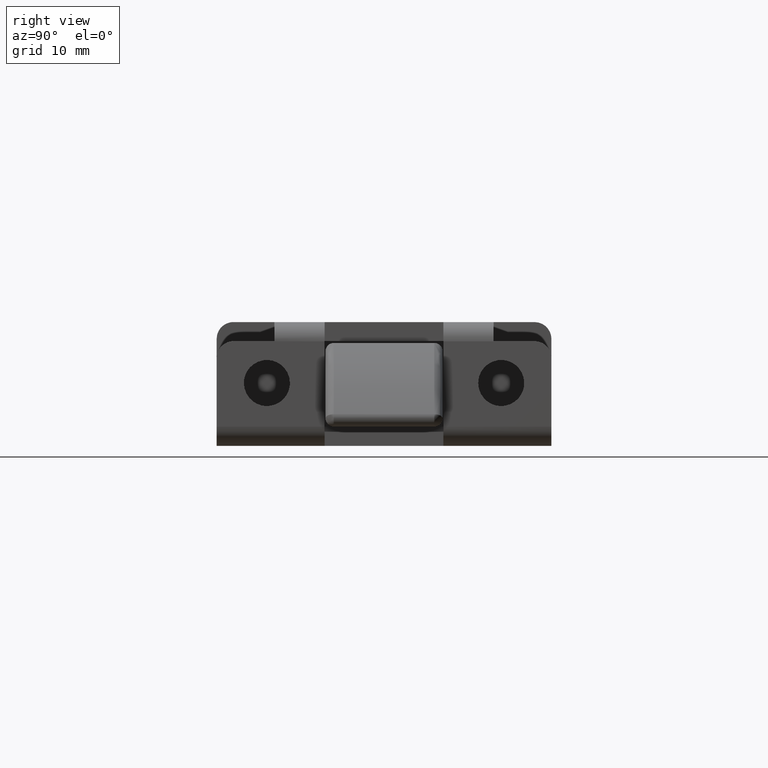
[diagram: clean part render]
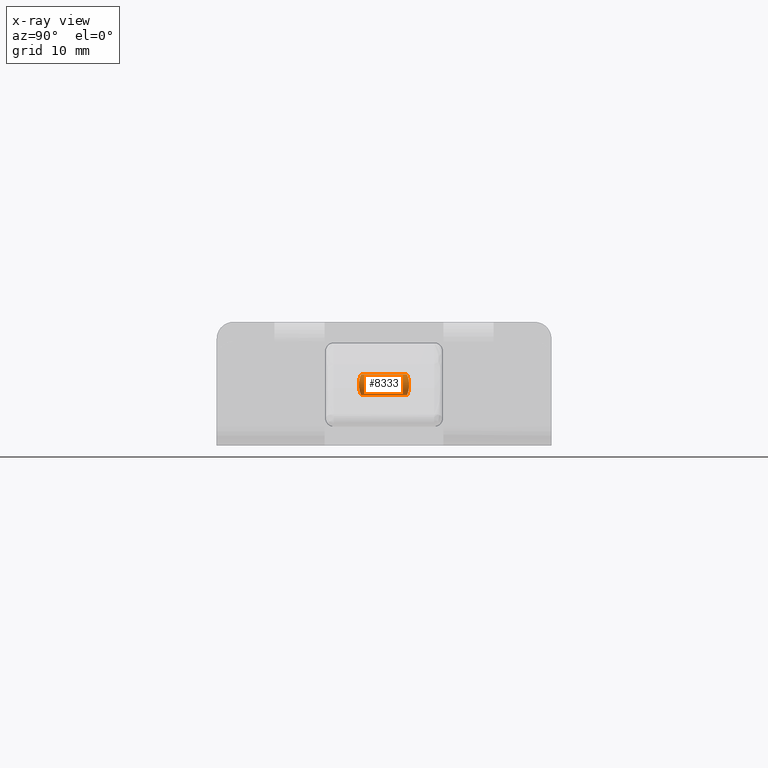
[diagram: x-ray — body ghosted, one internal face saturated and labeled with its STEP entity id]
A machine part, right view, then the same camera in x-ray: the body is ghosted and one INTERNAL B-rep face — a face not visible from any outside direction — is saturated and labeled: STEP entity #8333.
In plain terms, the highlighted face is a freeform B-spline surface patch.
Its self-contained STEP definition (entity closure, byte-faithful):
#8042=CARTESIAN_POINT('',(29.344838550902150,1.240332904094824,-2.731592356544332));
#8043=VERTEX_POINT('',#8042);
#8073=CARTESIAN_POINT('',(29.344840126864771,1.240331733160716,2.731589449662411));
#8074=VERTEX_POINT('',#8073);
#8075=CARTESIAN_POINT('',(29.344838550902150,1.240332904094824,-2.731592356544332));
#8076=CARTESIAN_POINT('',(29.344840126864771,1.240331733160716,2.731589449662411));
#8077=QUASI_UNIFORM_CURVE('',1,(#8075,#8076),.UNSPECIFIED.,.F.,.U.);
#8078=EDGE_CURVE('',#8043,#8074,#8077,.T.);
#8110=CARTESIAN_POINT('',(29.510908170656421,-1.249952560882582,2.727199867985993));
#8111=VERTEX_POINT('',#8110);
#8143=CARTESIAN_POINT('',(29.510908171584909,-1.249952664195954,-2.727199891385991));
#8144=VERTEX_POINT('',#8143);
#8145=CARTESIAN_POINT('',(29.510908171584909,-1.249952664195954,-2.727199891385991));
#8146=CARTESIAN_POINT('',(29.510908170656421,-1.249952560882582,2.727199867985993));
#8147=QUASI_UNIFORM_CURVE('',1,(#8145,#8146),.UNSPECIFIED.,.F.,.U.);
#8148=EDGE_CURVE('',#8144,#8111,#8147,.T.);
#8185=CARTESIAN_POINT('',(29.510908169372978,-1.249952403830214,-3.150000000000001));
#8186=CARTESIAN_POINT('',(30.760860573203193,-1.239044234457240,-3.150000000000002));
#8187=CARTESIAN_POINT('',(30.749952403830211,0.010908169372974,-3.150000000000001));
#8188=CARTESIAN_POINT('',(30.739044234457236,1.260860573203187,-3.150000000000002));
#8189=CARTESIAN_POINT('',(29.489091830627029,1.249952403830214,-3.150000000000001));
#8190=CARTESIAN_POINT('',(29.416687301302268,1.249320539075344,-3.150000000000001));
#8191=CARTESIAN_POINT('',(29.344839997400200,1.240332767281923,-3.150000000000002));
#8192=CARTESIAN_POINT('',(29.510908169372978,-1.249952403830214,3.153750000000001));
#8193=CARTESIAN_POINT('',(30.760860573203193,-1.239044234457240,3.153750000000001));
#8194=CARTESIAN_POINT('',(30.749952403830211,0.010908169372974,3.153750000000001));
#8195=CARTESIAN_POINT('',(30.739044234457236,1.260860573203187,3.153750000000001));
#8196=CARTESIAN_POINT('',(29.489091830627029,1.249952403830214,3.153750000000001));
#8197=CARTESIAN_POINT('',(29.416687301302268,1.249320539075344,3.153750000000000));
#8198=CARTESIAN_POINT('',(29.344839997400200,1.240332767281923,3.153750000000001));
#8206=(BOUNDED_SURFACE()B_SPLINE_SURFACE(2,1,((#8185,#8192),(#8186,#8193),(#8187,#8194),(#8188,#8195),(#8189,#8196),(#8190,#8197),(#8191,#8198)),.UNSPECIFIED.,.F.,.F.,.U.)B_SPLINE_SURFACE_WITH_KNOTS((3,2,2,3),(2,2),(0.0,1.570796326794897,3.141592653589793,3.267256359733385),(0.0,6.303750000000002),.UNSPECIFIED.)GEOMETRIC_REPRESENTATION_ITEM()RATIONAL_B_SPLINE_SURFACE(((1.0,1.0),(0.707106781186548,0.707106781186548),(1.0,1.0),(0.707106781186548,0.707106781186548),(1.0,1.0),(0.976568542494924,0.976568542494924),(0.956886118190660,0.956886118190660)))REPRESENTATION_ITEM('')SURFACE());
#8207=CARTESIAN_POINT('',(30.750000000000011,-3.689676E-015,-3.000000000000001));
#8208=VERTEX_POINT('',#8207);
#8209=CARTESIAN_POINT('',(30.750000000000011,-3.689676E-015,-3.000000000000001));
#8210=CARTESIAN_POINT('',(30.750000007580091,0.083586373709447,-3.000000115303389));
#8211=CARTESIAN_POINT('',(30.741701912403361,0.165598231336512,-2.996515883371274));
#8212=CARTESIAN_POINT('',(30.717442794146312,0.286390802047154,-2.986572478489973));
#8213=CARTESIAN_POINT('',(30.707372342447730,0.326281515819351,-2.982470174180274));
#8214=CARTESIAN_POINT('',(30.683187494600119,0.405308475800792,-2.972761993882068));
#8215=CARTESIAN_POINT('',(30.669092346860651,0.444293927557682,-2.967165326307284));
#8216=CARTESIAN_POINT('',(30.621758995166559,0.557541560274705,-2.948729254598390));
#8217=CARTESIAN_POINT('',(30.583277717008020,0.628993884759899,-2.934143908747905));
#8218=CARTESIAN_POINT('',(30.515247285205110,0.730362208346920,-2.909946020341499));
#8219=CARTESIAN_POINT('',(30.490733793252438,0.763277027065874,-2.901460158583781));
#8220=CARTESIAN_POINT('',(30.439166212011060,0.825900764553578,-2.884259299545791));
#8221=CARTESIAN_POINT('',(30.384884555723620,0.885626432363198,-2.866763986154618));
#8222=CARTESIAN_POINT('',(30.325226096456600,0.939752312254823,-2.849142254887029));
#8223=CARTESIAN_POINT('',(30.262813616517938,0.991084187528746,-2.831695429215422));
#8224=CARTESIAN_POINT('',(30.230108057695471,1.015434331503226,-2.823028921903297));
#8225=CARTESIAN_POINT('',(30.128447509778859,1.083610917442932,-2.797882764977723));
#8226=CARTESIAN_POINT('',(30.057133822844168,1.121917806916564,-2.782528896377604));
#8227=CARTESIAN_POINT('',(29.944723006318078,1.168918561049415,-2.762957324308232));
#8228=CARTESIAN_POINT('',(29.906339446448680,1.182828129959584,-2.757010585545412));
#8229=CARTESIAN_POINT('',(29.827639443058459,1.206998949359299,-2.746514894302027));
#8230=CARTESIAN_POINT('',(29.787193300153270,1.217259304671568,-2.741965836719872));
#8231=CARTESIAN_POINT('',(29.665911162069360,1.241682546457919,-2.731036631381655));
#8232=CARTESIAN_POINT('',(29.584197279430740,1.249892318972865,-2.727230892774652));
#8233=CARTESIAN_POINT('',(29.460317020001380,1.250051882154293,-2.727157944672241));
#8234=CARTESIAN_POINT('',(29.418578892597750,1.248039394759720,-2.728083277902631));
#8235=CARTESIAN_POINT('',(29.366345527529280,1.242881228717612,-2.730433763204148));
#8236=CARTESIAN_POINT('',(29.355572692214320,1.241675439254741,-2.730982624038547));
#8237=CARTESIAN_POINT('',(29.344838550902150,1.240332904094824,-2.731592356544332));
#8238=B_SPLINE_CURVE_WITH_KNOTS('',3,(#8209,#8210,#8211,#8212,#8213,#8214,#8215,#8216,#8217,#8218,#8219,#8220,#8221,#8222,#8223,#8224,#8225,#8226,#8227,#8228,#8229,#8230,#8231,#8232,#8233,#8234,#8235,#8236,#8237),.UNSPECIFIED.,.F.,.U.,(4,2,2,2,2,2,1,2,2,2,2,2,2,2,4),(0.0,0.031250000000001,0.046875000000001,0.062500000000002,0.093750000000002,0.109375000000003,0.125000000000004,0.140625000000005,0.156250000000005,0.187500000000006,0.203125000000007,0.218750000000008,0.250000000000008,0.265625000000009,0.269703509159353),.UNSPECIFIED.);
#8239=EDGE_CURVE('',#8208,#8043,#8238,.T.);
#8240=ORIENTED_EDGE('',*,*,#8239,.F.);
#8241=CARTESIAN_POINT('',(29.510908171584909,-1.249952664195954,-2.727199891385991));
#8242=CARTESIAN_POINT('',(29.589296556383950,-1.249275289009685,-2.727514015035051));
#8243=CARTESIAN_POINT('',(29.667320676138360,-1.241279488260619,-2.731211151635119));
#8244=CARTESIAN_POINT('',(29.826596863824360,-1.209447310386240,-2.745461096500158));
#8245=CARTESIAN_POINT('',(29.905147575947879,-1.185332249875075,-2.756109905570872));
#8246=CARTESIAN_POINT('',(30.018131992927280,-1.138289731627143,-2.775713435392267));
#8247=CARTESIAN_POINT('',(30.055018678714010,-1.120773996547606,-2.782858228204957));
#8248=CARTESIAN_POINT('',(30.127250201671892,-1.082006131942560,-2.798159573731281));
#8249=CARTESIAN_POINT('',(30.162320961087449,-1.060883767386168,-2.806261653191285));
#8250=CARTESIAN_POINT('',(30.263342443305749,-0.993167663511629,-2.831242364838505));
#8251=CARTESIAN_POINT('',(30.325671814805130,-0.941995762138766,-2.848902693928847));
#8252=CARTESIAN_POINT('',(30.411848710086922,-0.855966950486726,-2.875451481683363));
#8253=CARTESIAN_POINT('',(30.439400881490322,-0.825633354411228,-2.884334219540635));
#8254=CARTESIAN_POINT('',(30.490938824906660,-0.763010286532054,-2.901528843312729));
#8255=CARTESIAN_POINT('',(30.515071063691678,-0.730590543194487,-2.909884187919031));
#8256=CARTESIAN_POINT('',(30.582650579993771,-0.629995989063916,-2.933915330985039));
#8257=CARTESIAN_POINT('',(30.621376609158400,-0.558428572896768,-2.948579926802438));
#8258=CARTESIAN_POINT('',(30.685127510449330,-0.405956591979051,-2.973409709609248));
#8259=CARTESIAN_POINT('',(30.709084677919080,-0.327632290900615,-2.983147123908998));
#8260=CARTESIAN_POINT('',(30.733419989799572,-0.207020042188602,-2.993120465728713));
#8261=CARTESIAN_POINT('',(30.739583742264710,-0.166291572972253,-2.995672479642949));
#8262=CARTESIAN_POINT('',(30.747881283743020,-0.083743913286141,-2.999115444513474));
#8263=CARTESIAN_POINT('',(30.750000000000000,-0.041793190974979,-3.0));
#8264=CARTESIAN_POINT('',(30.750000000000011,-3.767603E-015,-3.000000000000001));
#8265=B_SPLINE_CURVE_WITH_KNOTS('',3,(#8241,#8242,#8243,#8244,#8245,#8246,#8247,#8248,#8249,#8250,#8251,#8252,#8253,#8254,#8255,#8256,#8257,#8258,#8259,#8260,#8261,#8262,#8263,#8264),.UNSPECIFIED.,.F.,.U.,(4,2,2,2,2,2,2,2,2,2,2,4),(0.751519376428459,0.781250000000016,0.812500000000015,0.828125000000015,0.843750000000014,0.875000000000012,0.890625000000011,0.906250000000009,0.937500000000006,0.968750000000003,0.984375000000002,1.0),.UNSPECIFIED.);
#8266=EDGE_CURVE('',#8144,#8208,#8265,.T.);
#8267=ORIENTED_EDGE('',*,*,#8266,.F.);
#8268=ORIENTED_EDGE('',*,*,#8148,.T.);
#8269=CARTESIAN_POINT('',(30.750000000000000,6.156235E-015,3.0));
#8270=VERTEX_POINT('',#8269);
#8271=CARTESIAN_POINT('',(30.750000000000000,6.156235E-015,3.0));
#8272=CARTESIAN_POINT('',(30.750000000000000,-0.083586381949950,3.0));
#8273=CARTESIAN_POINT('',(30.741701896465081,-0.165598248663435,2.996515640928315));
#8274=CARTESIAN_POINT('',(30.717442764566432,-0.286390834204223,2.986572028539729));
#8275=CARTESIAN_POINT('',(30.707372308135220,-0.326281553121388,2.982469652240289));
#8276=CARTESIAN_POINT('',(30.683187450445800,-0.405308523802122,2.972761322234760));
#8277=CARTESIAN_POINT('',(30.669092297612998,-0.444293981096126,2.967164577183239));
#8278=CARTESIAN_POINT('',(30.621758930424281,-0.557541630657768,2.948728269780043));
#8279=CARTESIAN_POINT('',(30.583277641546360,-0.628993966796290,2.934142760873154));
#8280=CARTESIAN_POINT('',(30.515247193086680,-0.730362308491330,2.909944619094638));
#8281=CARTESIAN_POINT('',(30.490733695464140,-0.763277133374149,2.901458671090396));
#8282=CARTESIAN_POINT('',(30.439166102908221,-0.825900883162183,2.884257639942977));
#8283=CARTESIAN_POINT('',(30.384884435284452,-0.885626563295834,2.866762154110750));
#8284=CARTESIAN_POINT('',(30.325225964634040,-0.939752455562646,2.849140249686315));
#8285=CARTESIAN_POINT('',(30.262813473285849,-0.991084343240163,2.831693250460374));
#8286=CARTESIAN_POINT('',(30.230107908725039,-1.015434493452960,2.823026655860053));
#8287=CARTESIAN_POINT('',(30.128447343688020,-1.083611098004730,2.797880238509632));
#8288=CARTESIAN_POINT('',(30.057133645651579,-1.121917999547372,2.782526201036782));
#8289=CARTESIAN_POINT('',(29.944722812930380,-1.168918771286372,2.762954382617542));
#8290=CARTESIAN_POINT('',(29.906339247739460,-1.182828345981698,2.757007562907301));
#8291=CARTESIAN_POINT('',(29.827639233865909,-1.206999176778107,2.746511712198371));
#8292=CARTESIAN_POINT('',(29.787193085785660,-1.217259537716316,2.741962575896604));
#8293=CARTESIAN_POINT('',(29.668946461916050,-1.241071514403844,2.731306693042289));
#8294=CARTESIAN_POINT('',(29.590331396347430,-1.249264760954875,2.727517938926791));
#8295=CARTESIAN_POINT('',(29.510908170656421,-1.249952560882582,2.727199867985993));
#8296=B_SPLINE_CURVE_WITH_KNOTS('',3,(#8271,#8272,#8273,#8274,#8275,#8276,#8277,#8278,#8279,#8280,#8281,#8282,#8283,#8284,#8285,#8286,#8287,#8288,#8289,#8290,#8291,#8292,#8293,#8294,#8295),.UNSPECIFIED.,.F.,.U.,(4,2,2,2,2,2,1,2,2,2,2,2,4),(0.0,0.031250000000001,0.046875000000002,0.062500000000003,0.093750000000004,0.109375000000004,0.125000000000004,0.140625000000004,0.156250000000004,0.187500000000005,0.203125000000005,0.218750000000005,0.248826781820321),.UNSPECIFIED.);
#8297=EDGE_CURVE('',#8270,#8111,#8296,.T.);
#8298=ORIENTED_EDGE('',*,*,#8297,.F.);
#8299=CARTESIAN_POINT('',(29.344840126864771,1.240331733160716,2.731589449662411));
#8300=CARTESIAN_POINT('',(29.354853285493100,1.241585282516046,2.731020154730636));
#8301=CARTESIAN_POINT('',(29.364887088181700,1.242718384560831,2.730504495664228));
#8302=CARTESIAN_POINT('',(29.416352498062821,1.247893723105975,2.728146756151042));
#8303=CARTESIAN_POINT('',(29.457670377791182,1.249963806112979,2.727195072853618));
#8304=CARTESIAN_POINT('',(29.581320663347050,1.250073828394827,2.727144621295013));
#8305=CARTESIAN_POINT('',(29.663352081111270,1.242073515737918,2.730856103931787));
#8306=CARTESIAN_POINT('',(29.826596760326272,1.209448137110484,2.745461096499972));
#8307=CARTESIAN_POINT('',(29.905147477619149,1.185333035307250,2.756109905570695));
#8308=CARTESIAN_POINT('',(30.018131902629030,1.138290452913483,2.775713435392105));
#8309=CARTESIAN_POINT('',(30.055018591141359,1.120774696062293,2.782858228204800));
#8310=CARTESIAN_POINT('',(30.127250119649378,1.082006787123728,2.798159573731134));
#8311=CARTESIAN_POINT('',(30.162320881869221,1.060884400167210,2.806261653191144));
#8312=CARTESIAN_POINT('',(30.263342372489049,0.993168229182724,2.831242364838377));
#8313=CARTESIAN_POINT('',(30.325671749614560,0.941996282869363,2.848902693928730));
#8314=CARTESIAN_POINT('',(30.411848653380069,0.855967403450924,2.875451481683263));
#8315=CARTESIAN_POINT('',(30.439400827626390,0.825633784666738,2.884334219540539));
#8316=CARTESIAN_POINT('',(30.490938776629669,0.763010672160178,2.901528843312642));
#8317=CARTESIAN_POINT('',(30.515071018172382,0.730590906794572,2.909884187918949));
#8318=CARTESIAN_POINT('',(30.582650542642490,0.629996287419264,2.933915330984972));
#8319=CARTESIAN_POINT('',(30.621376577120010,0.558428828813564,2.948579926802379));
#8320=CARTESIAN_POINT('',(30.685127488716141,0.405956765579960,2.973409709609209));
#8321=CARTESIAN_POINT('',(30.709084661004258,0.327632426013283,2.983147123908968));
#8322=CARTESIAN_POINT('',(30.733419979618731,0.207020123511309,2.993120465728696));
#8323=CARTESIAN_POINT('',(30.739583734245699,0.166291637026761,2.995672479642935));
#8324=CARTESIAN_POINT('',(30.747881279875880,0.083743944176107,2.999115444513467));
#8325=CARTESIAN_POINT('',(30.749999998128001,0.041793205928143,2.999999999999996));
#8326=CARTESIAN_POINT('',(30.750000000000000,6.156235E-015,3.0));
#8327=B_SPLINE_CURVE_WITH_KNOTS('',3,(#8299,#8300,#8301,#8302,#8303,#8304,#8305,#8306,#8307,#8308,#8309,#8310,#8311,#8312,#8313,#8314,#8315,#8316,#8317,#8318,#8319,#8320,#8321,#8322,#8323,#8324,#8325,#8326),.UNSPECIFIED.,.F.,.U.,(4,2,2,2,2,2,2,2,2,2,2,2,2,4),(0.730586358519957,0.734374999999986,0.749999999999985,0.781249999999986,0.812499999999987,0.828124999999987,0.843749999999988,0.874999999999989,0.890624999999991,0.906249999999992,0.937499999999995,0.968749999999998,0.984374999999999,1.0),.UNSPECIFIED.);
#8328=EDGE_CURVE('',#8074,#8270,#8327,.T.);
#8329=ORIENTED_EDGE('',*,*,#8328,.F.);
#8330=ORIENTED_EDGE('',*,*,#8078,.F.);
#8331=EDGE_LOOP('',(#8240,#8267,#8268,#8298,#8329,#8330));
#8332=FACE_OUTER_BOUND('',#8331,.T.);
#8333=ADVANCED_FACE('',(#8332),#8206,.F.);